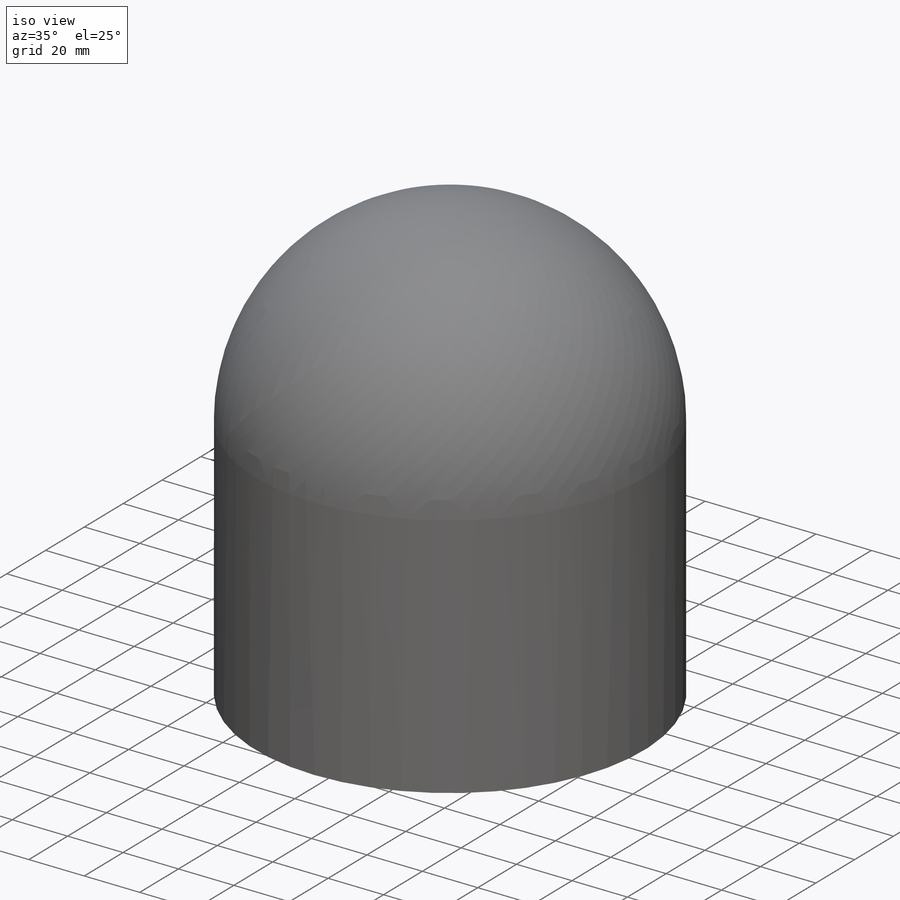
[diagram: iso view]
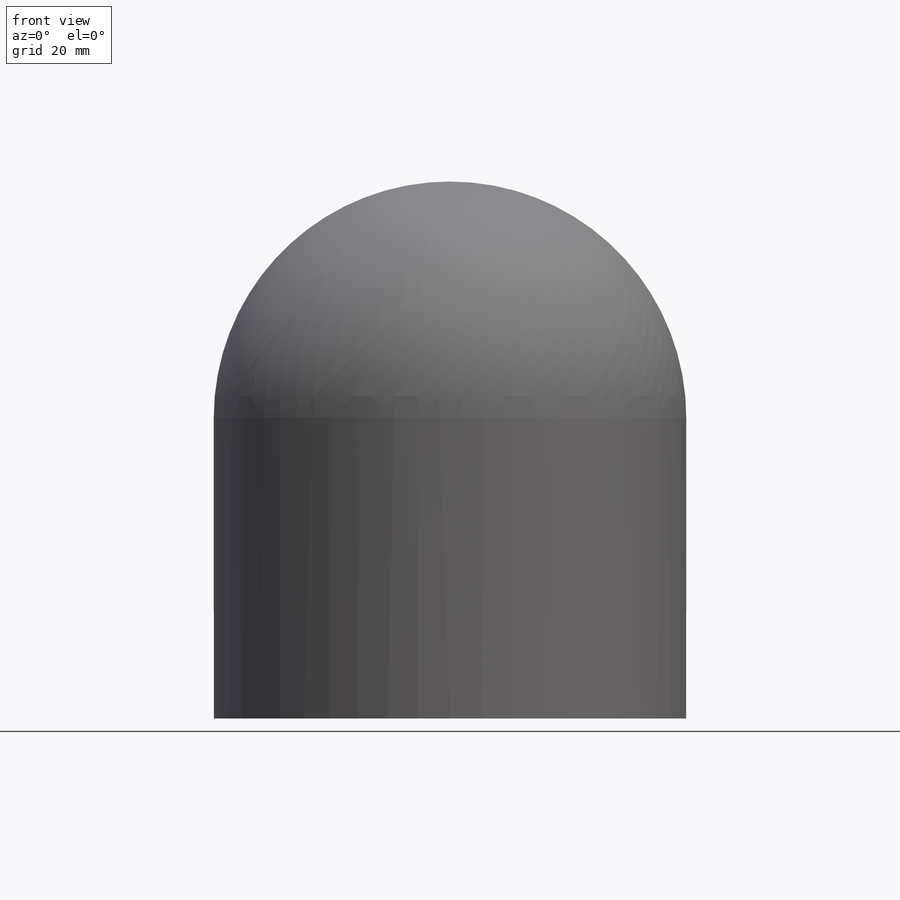
[diagram: front view]
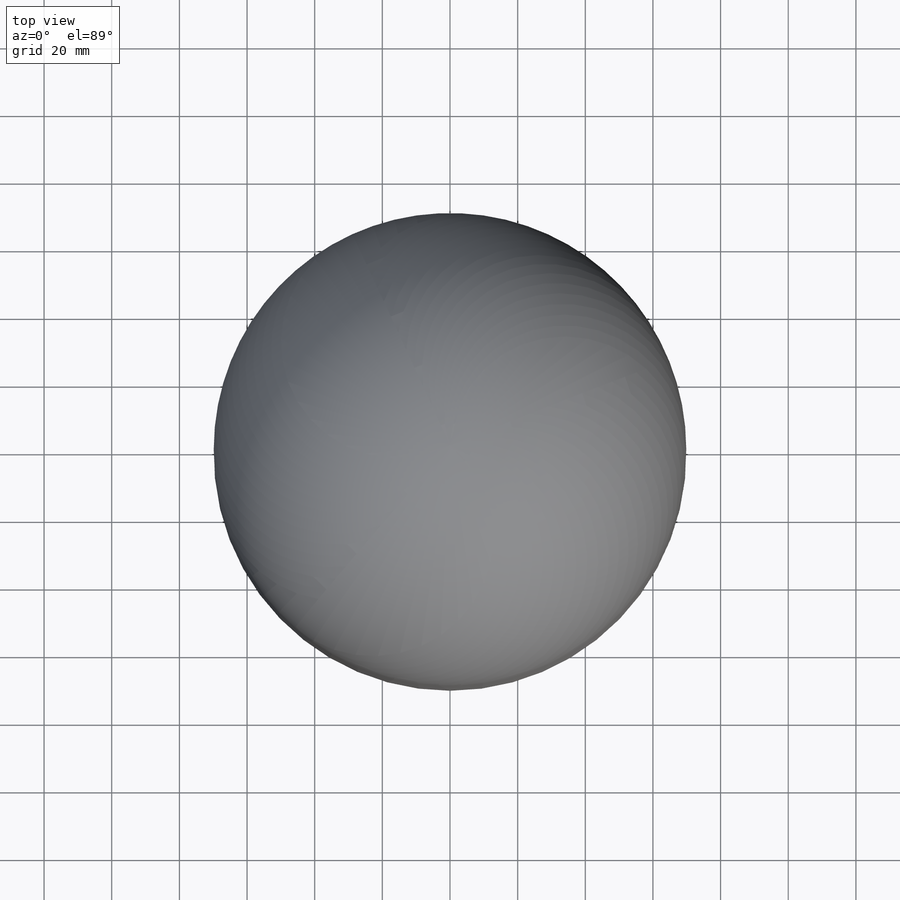
[diagram: top view]
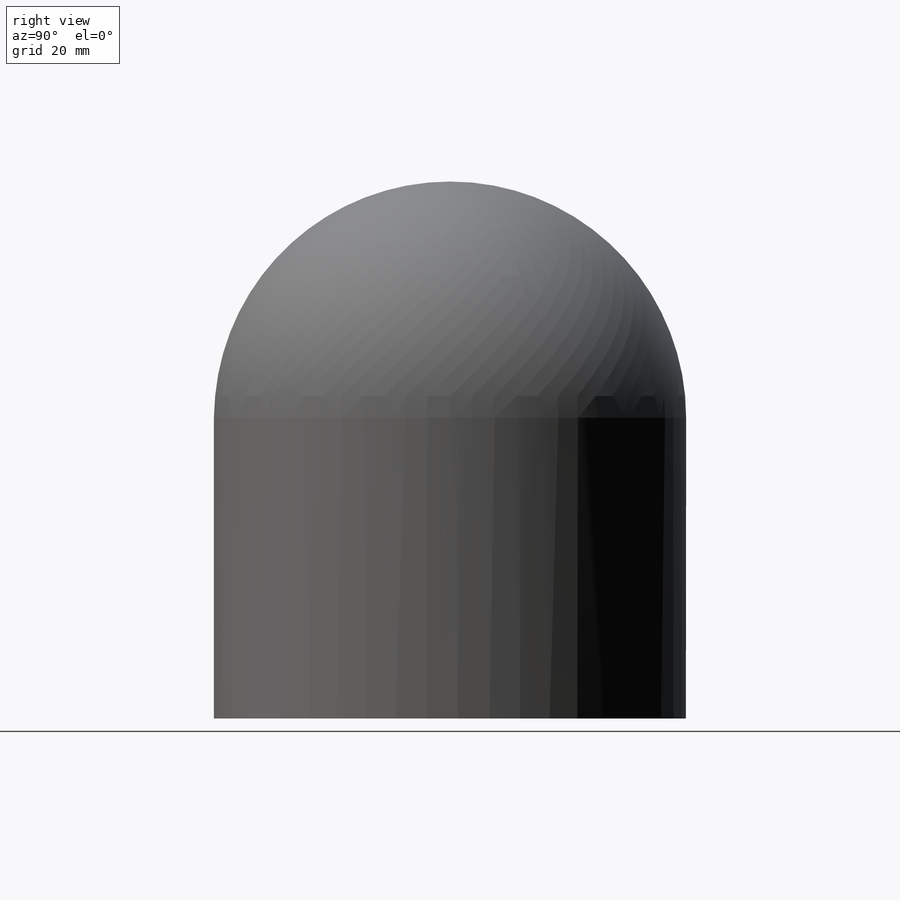
[diagram: right view]
SOLIDWORKS PART (.sldprt)
format: sldprt  version: not decoded by parser v0  size: 222,208 bytes
history: native  units: mm
features: sketch x2, material x1, revolve x1, extrude x1, fillet x1 (+13 scaffold rows collapsed)
feature tree (19):
  scaffold x13  (default folders/planes/origin — collapsed)
  material  "Material <not specified>"
  sketch  "Sketch1"  dims[D3=127.0mm D1=76.2mm D2=63.5mm D4=3.175mm D5=6.35mm D6=12.7mm]
  revolve  "Revolve3"  Angle=360deg
  sketch  "Sketch3"  dims[D1=~0.79375mm]
  extrude  "Boss-Extrude1"  Depth=12.7mm
  fillet  "Fillet2"  Radius=0.79375mm
decode coverage: 5 of 5 modeling features carry decoded parameters
note: ~ marks probable driven/reference dimensions
note: suppression state not decoded; provenance and decode notes live in map.json
